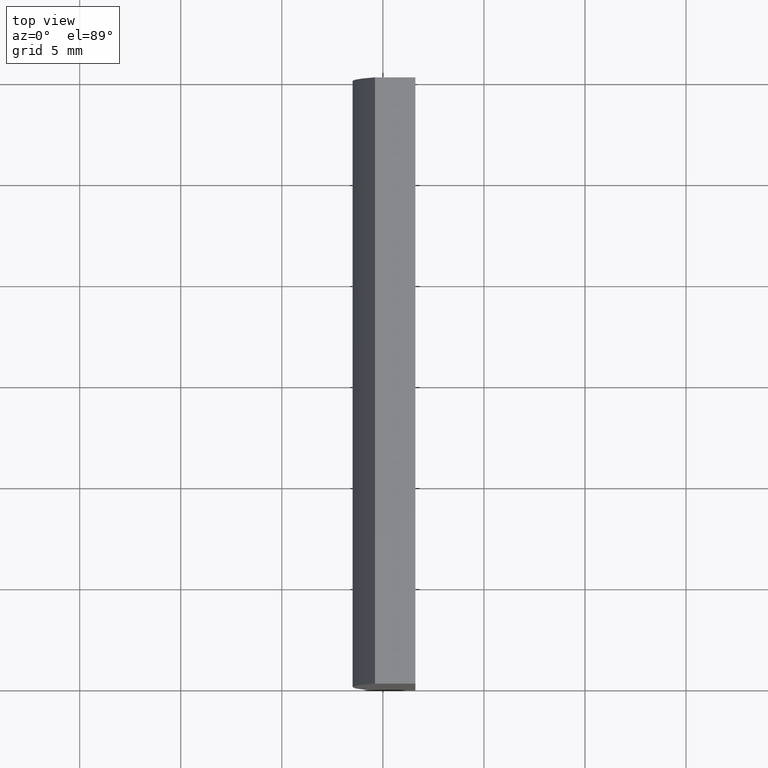
[diagram: clean part render]
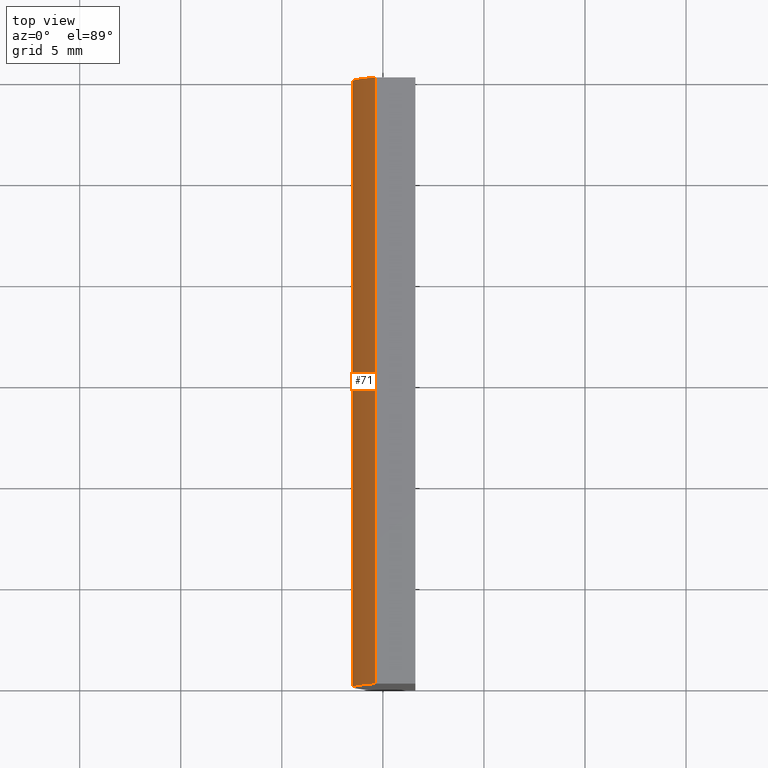
[diagram: same view with one face highlighted and labeled with its STEP entity id]
A machine part, top view. The second image highlights one B-rep face of the part: STEP entity #71.
In plain terms, the highlighted cylindrical surface (partial cylindrical patch) has radius 45.85 mm, axis along (-0, -1, -0).
Its self-contained STEP definition (entity closure, byte-faithful):
#2 = VERTEX_POINT ( 'NONE', #10 ) ;
#10 = CARTESIAN_POINT ( 'NONE',  ( -40.39099662120761300, 0.0000000000000000000, 10.00000000000000000 ) ) ;
#12 = LINE ( 'NONE', #62, #139 ) ;
#14 = DIRECTION ( 'NONE',  ( 0.0000000000000000000, 0.0000000000000000000, -1.000000000000000000 ) ) ;
#24 = VECTOR ( 'NONE', #186, 1000.000000000000000 ) ;
#25 = EDGE_CURVE ( 'NONE', #145, #2, #12, .T. ) ;
#26 = FACE_OUTER_BOUND ( 'NONE', #48, .T. ) ;
#28 = ORIENTED_EDGE ( 'NONE', *, *, #90, .T. ) ;
#29 = AXIS2_PLACEMENT_3D ( 'NONE', #113, #191, #159 ) ;
#32 = VERTEX_POINT ( 'NONE', #118 ) ;
#34 = CARTESIAN_POINT ( 'NONE',  ( 4.355204334851265500, 30.00000000000000000, 4.286263797015675000E-017 ) ) ;
#41 = DIRECTION ( 'NONE',  ( 0.0000000000000000000, 1.000000000000000000, 0.0000000000000000000 ) ) ;
#48 = EDGE_LOOP ( 'NONE', ( #28, #115, #151, #147 ) ) ;
#62 = CARTESIAN_POINT ( 'NONE',  ( -40.39099662120761300, 30.00000000000000000, 10.00000000000000000 ) ) ;
#66 = CARTESIAN_POINT ( 'NONE',  ( -40.39099662120761300, 30.00000000000000000, 10.00000000000000000 ) ) ;
#71 = ADVANCED_FACE ( 'NONE', ( #26 ), #83, .T. ) ;
#77 = CIRCLE ( 'NONE', #29, 45.85000000000005100 ) ;
#80 = CIRCLE ( 'NONE', #130, 45.85000000000005100 ) ;
#81 = DIRECTION ( 'NONE',  ( -0.0000000000000000000, -1.000000000000000000, -0.0000000000000000000 ) ) ;
#83 = CYLINDRICAL_SURFACE ( 'NONE', #99, 45.85000000000005100 ) ;
#85 = DIRECTION ( 'NONE',  ( 0.0000000000000000000, 0.0000000000000000000, 1.000000000000000000 ) ) ;
#90 = EDGE_CURVE ( 'NONE', #109, #2, #80, .T. ) ;
#99 = AXIS2_PLACEMENT_3D ( 'NONE', #34, #81, #14 ) ;
#106 = EDGE_CURVE ( 'NONE', #32, #109, #168, .T. ) ;
#109 = VERTEX_POINT ( 'NONE', #150 ) ;
#113 = CARTESIAN_POINT ( 'NONE',  ( 4.355204334851265500, 30.00000000000000000, 4.286263797015675000E-017 ) ) ;
#115 = ORIENTED_EDGE ( 'NONE', *, *, #25, .F. ) ;
#118 = CARTESIAN_POINT ( 'NONE',  ( -40.39099662120761300, 30.00000000000000000, -10.00000000000000000 ) ) ;
#130 = AXIS2_PLACEMENT_3D ( 'NONE', #148, #41, #85 ) ;
#139 = VECTOR ( 'NONE', #195, 1000.000000000000000 ) ;
#145 = VERTEX_POINT ( 'NONE', #66 ) ;
#147 = ORIENTED_EDGE ( 'NONE', *, *, #106, .T. ) ;
#148 = CARTESIAN_POINT ( 'NONE',  ( 4.355204334851265500, 0.0000000000000000000, 4.286263797015675000E-017 ) ) ;
#150 = CARTESIAN_POINT ( 'NONE',  ( -40.39099662120761300, 0.0000000000000000000, -10.00000000000000000 ) ) ;
#151 = ORIENTED_EDGE ( 'NONE', *, *, #171, .F. ) ;
#154 = CARTESIAN_POINT ( 'NONE',  ( -40.39099662120761300, 30.00000000000000000, -10.00000000000000000 ) ) ;
#159 = DIRECTION ( 'NONE',  ( 0.0000000000000000000, 0.0000000000000000000, 1.000000000000000000 ) ) ;
#168 = LINE ( 'NONE', #154, #24 ) ;
#171 = EDGE_CURVE ( 'NONE', #32, #145, #77, .T. ) ;
#186 = DIRECTION ( 'NONE',  ( -0.0000000000000000000, -1.000000000000000000, -0.0000000000000000000 ) ) ;
#191 = DIRECTION ( 'NONE',  ( 0.0000000000000000000, 1.000000000000000000, 0.0000000000000000000 ) ) ;
#195 = DIRECTION ( 'NONE',  ( -0.0000000000000000000, -1.000000000000000000, -0.0000000000000000000 ) ) ;